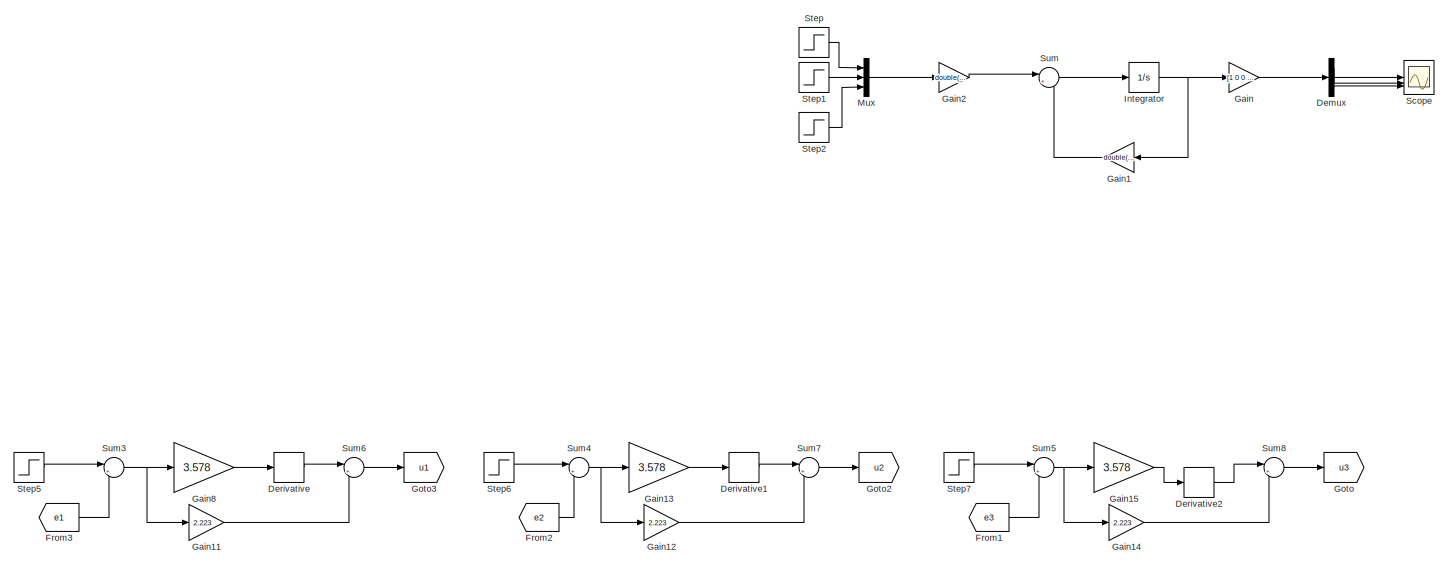
[diagram: root canvas - part 1/3, top left region]
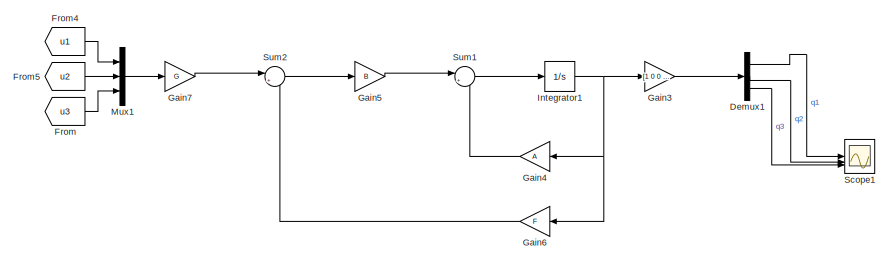
[diagram: root canvas - part 2/3, middle right region]
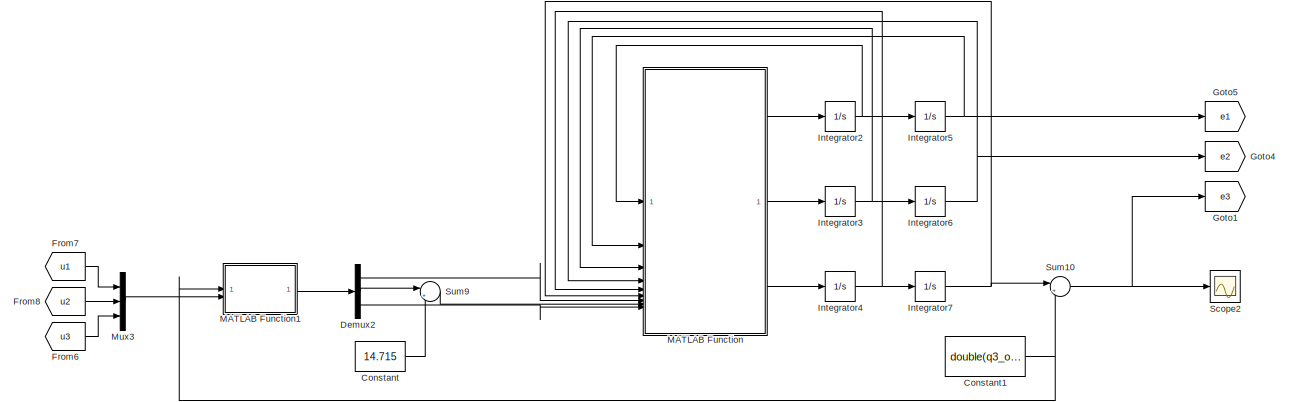
[diagram: root canvas - part 3/3, bottom left region]
MODEL slx_046e9015b2a4
KIND model
CONFIG AbsTol = auto
CONFIG EnableMultiTasking = off
CONFIG FixedStep = auto
CONFIG MaxStep = auto
CONFIG MinStep = auto
CONFIG RelTol = 1e-3
CONFIG SampleTimeConstraint = Unconstrained
CONFIG SolverName = VariableStepAuto
CONFIG StartTime = 0.0
CONFIG StopTime = 10
BLOCK [Constant] Constant
  Value = 14.715
BLOCK [Constant] Constant1
  Value = double(q3_op)
BLOCK [Demux] Demux
  Commented = on
  Outputs = 3
BLOCK [Demux] Demux1
  Commented = on
  Outputs = 3
BLOCK [Demux] Demux2
  Outputs = 3
BLOCK [Derivative] Derivative
BLOCK [Derivative] Derivative1
BLOCK [Derivative] Derivative2
BLOCK [From] From
  Commented = on
  GotoTag = u3
BLOCK [From] From1
  GotoTag = e3
BLOCK [From] From2
  GotoTag = e2
BLOCK [From] From3
  GotoTag = e1
BLOCK [From] From4
  Commented = on
  GotoTag = u1
BLOCK [From] From5
  Commented = on
  GotoTag = u2
BLOCK [From] From6
  GotoTag = u3
BLOCK [From] From7
  GotoTag = u1
BLOCK [From] From8
  GotoTag = u2
BLOCK [Gain] Gain
  Commented = on
  Gain = [1 0 0 0 0 0; 0 0 1 0 0 0;0 0 0 0 1 0]
  Multiplication = Matrix(K*u)
BLOCK [Gain] Gain1
  Commented = on
  Gain = double(A_num)
  Multiplication = Matrix(K*u)
  NameLocation = top
BLOCK [Gain] Gain11
  Gain = 2.223
BLOCK [Gain] Gain12
  Gain = 2.223
BLOCK [Gain] Gain13
  Gain = 3.578
BLOCK [Gain] Gain14
  Gain = 2.223
BLOCK [Gain] Gain15
  Gain = 3.578
BLOCK [Gain] Gain2
  Commented = on
  Gain = double(B_num)
  Multiplication = Matrix(K*u)
BLOCK [Gain] Gain3
  Commented = on
  Gain = [1 0 0 0 0 0; 0 0 1 0 0 0;0 0 0 0 1 0]
  Multiplication = Matrix(K*u)
BLOCK [Gain] Gain4
  Commented = on
  Gain = A
  Multiplication = Matrix(K*u)
  NameLocation = top
BLOCK [Gain] Gain5
  Commented = on
  Gain = B
  Multiplication = Matrix(K*u)
BLOCK [Gain] Gain6
  Commented = on
  Gain = F
  Multiplication = Matrix(K*u)
  NameLocation = top
BLOCK [Gain] Gain7
  Commented = on
  Gain = G
  Multiplication = Matrix(K*u)
BLOCK [Gain] Gain8
  Gain = 3.578
BLOCK [Goto] Goto
  GotoTag = u3
BLOCK [Goto] Goto1
  GotoTag = e3
BLOCK [Goto] Goto2
  GotoTag = u2
BLOCK [Goto] Goto3
  GotoTag = u1
BLOCK [Goto] Goto4
  GotoTag = e2
BLOCK [Goto] Goto5
  GotoTag = e1
BLOCK [Integrator] Integrator
  Commented = on
BLOCK [Integrator] Integrator1
  Commented = on
BLOCK [Integrator] Integrator2
BLOCK [Integrator] Integrator3
BLOCK [Integrator] Integrator4
BLOCK [Integrator] Integrator5
BLOCK [Integrator] Integrator6
BLOCK [Integrator] Integrator7
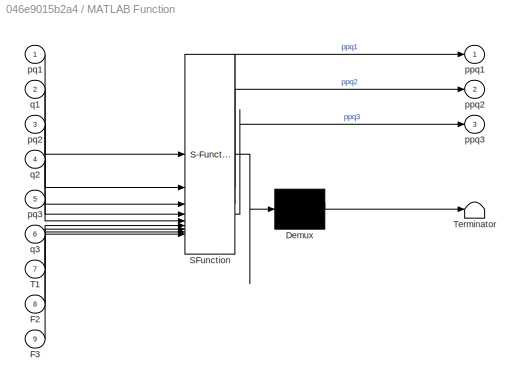
BLOCK [SubSystem] MATLAB Function
  ErrorFcn = Stateflow.Translate.translate
  PermitHierarchicalResolution = ExplicitOnly
  SFBlockType = MATLAB Function
  TreatAsAtomicUnit = on
BLOCK [Demux] MATLAB Function/ Demux 
  Outputs = 1
BLOCK [S-Function] MATLAB Function/ SFunction 
  EnableBusSupport = on
  FunctionName = sf_sfun
  PortCounts = [9 4]
  SFcnIsStateOwnerBlock = off
  SFunctionDeploymentMode = off
  Tag = Stateflow S-Function 2
BLOCK [Terminator] MATLAB Function/ Terminator 
BLOCK [Inport] MATLAB Function/F2
  Port = 8
BLOCK [Inport] MATLAB Function/F3
  Port = 9
BLOCK [Inport] MATLAB Function/T1
  Port = 7
BLOCK [Outport] MATLAB Function/ppq1
BLOCK [Outport] MATLAB Function/ppq2
  Port = 2
BLOCK [Outport] MATLAB Function/ppq3
  Port = 3
BLOCK [Inport] MATLAB Function/pq1
BLOCK [Inport] MATLAB Function/pq2
  Port = 3
BLOCK [Inport] MATLAB Function/pq3
  Port = 5
BLOCK [Inport] MATLAB Function/q1
  Port = 2
BLOCK [Inport] MATLAB Function/q2
  Port = 4
BLOCK [Inport] MATLAB Function/q3
  Port = 6
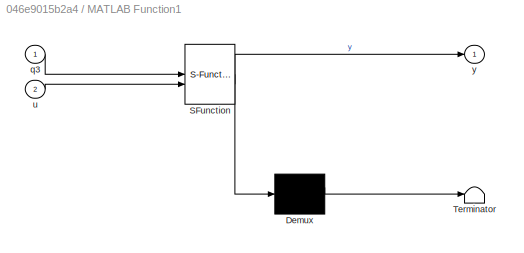
BLOCK [SubSystem] MATLAB Function1
  ErrorFcn = Stateflow.Translate.translate
  PermitHierarchicalResolution = ExplicitOnly
  SFBlockType = MATLAB Function
  TreatAsAtomicUnit = on
BLOCK [Demux] MATLAB Function1/ Demux 
  Outputs = 1
BLOCK [S-Function] MATLAB Function1/ SFunction 
  EnableBusSupport = on
  FunctionName = sf_sfun
  PortCounts = [2 2]
  SFcnIsStateOwnerBlock = off
  SFunctionDeploymentMode = off
  Tag = Stateflow S-Function 1
BLOCK [Terminator] MATLAB Function1/ Terminator 
BLOCK [Inport] MATLAB Function1/q3
BLOCK [Inport] MATLAB Function1/u
  Port = 2
BLOCK [Outport] MATLAB Function1/y
BLOCK [Mux] Mux
  Commented = on
  DisplayOption = bar
  Inputs = 3
BLOCK [Mux] Mux1
  Commented = on
  DisplayOption = bar
  Inputs = 3
BLOCK [Mux] Mux3
  DisplayOption = bar
  Inputs = 3
BLOCK [Scope] Scope
  Commented = on
  Floating = off
  NumInputPorts = 3
  ScopeSpecificationString = Simulink.scopes.TimeScopeBlockCfg('CurrentConfiguration', extmgr.ConfigurationSet(extmgr.Configuration('Core','General UI',true),extmgr.Configuration('Core','Source UI',true),extmgr.Configuration('Sources','WiredSimulink',true),extmgr.Configuration('Visuals','Time Domain',true,'SerializedDisplays',{struct('MinYLimReal','-121167.6499','MaxYLimReal','24353.07221','YLabelReal','','MinYLimMag','    0....<+1437ch>
BLOCK [Scope] Scope1
  Commented = on
  Floating = off
  NumInputPorts = 3
  ScopeSpecificationString = Simulink.scopes.TimeScopeBlockCfg('CurrentConfiguration', extmgr.ConfigurationSet(extmgr.Configuration('Core','General UI',true),extmgr.Configuration('Core','Source UI',true),extmgr.Configuration('Sources','WiredSimulink',true,'DataLoggingVariableName','ScopeData1'),extmgr.Configuration('Visuals','Time Domain',true,'SerializedDisplays',{struct('MinYLimReal','-0.12491','MaxYLimReal','1.12416','YLab...<+1495ch>
BLOCK [Scope] Scope2
  Floating = off
  NumInputPorts = 1
  ScopeSpecificationString = Simulink.scopes.TimeScopeBlockCfg('CurrentConfiguration', extmgr.ConfigurationSet(extmgr.Configuration('Core','General UI',true),extmgr.Configuration('Core','Source UI',true),extmgr.Configuration('Sources','WiredSimulink',true,'DataLoggingVariableName','ScopeData2'),extmgr.Configuration('Visuals','Time Domain',true,'SerializedDisplays',{struct('MinYLimReal','-1.8919','MaxYLimReal','1.31918','YLabe...<+1360ch>
BLOCK [Step] Step
  Commented = on
  SampleTime = 0
BLOCK [Step] Step1
  Commented = on
  SampleTime = 0
BLOCK [Step] Step2
  Commented = on
  SampleTime = 0
BLOCK [Step] Step5
  After = 0
  SampleTime = 0
  Time = 0
BLOCK [Step] Step6
  After = 0
  SampleTime = 0
  Time = 0
BLOCK [Step] Step7
  SampleTime = 0
  Time = 0
BLOCK [Sum] Sum
  Commented = on
  Inputs = |++
BLOCK [Sum] Sum1
  Commented = on
  Inputs = |++
BLOCK [Sum] Sum10
  Inputs = |+-
BLOCK [Sum] Sum2
  Commented = on
  Inputs = |+-
BLOCK [Sum] Sum3
  Inputs = |+-
BLOCK [Sum] Sum4
  Inputs = |+-
BLOCK [Sum] Sum5
  Inputs = |+-
BLOCK [Sum] Sum6
  Inputs = |++
BLOCK [Sum] Sum7
  Inputs = |++
BLOCK [Sum] Sum8
  Inputs = |++
BLOCK [Sum] Sum9
  Inputs = |++
NET Constant1:1 -> MATLAB Function1:1, Sum10:2
LINE Constant:1 -> Sum9:2
LINE Demux1:1 -> Scope1:1
LINE Demux1:2 -> Scope1:2
LINE Demux1:3 -> Scope1:3
LINE Demux2:1 -> MATLAB Function:7
LINE Demux2:2 -> Sum9:1
LINE Demux2:3 -> MATLAB Function:9
LINE Demux:1 -> Scope:1
LINE Demux:2 -> Scope:2
LINE Demux:3 -> Scope:3
LINE Derivative1:1 -> Sum7:1
LINE Derivative2:1 -> Sum8:1
LINE Derivative:1 -> Sum6:1
LINE From1:1 -> Sum5:2
LINE From2:1 -> Sum4:2
LINE From3:1 -> Sum3:2
LINE From4:1 -> Mux1:1
LINE From5:1 -> Mux1:2
LINE From6:1 -> Mux3:3
LINE From7:1 -> Mux3:1
LINE From8:1 -> Mux3:2
LINE From:1 -> Mux1:3
LINE Gain11:1 -> Sum6:2
LINE Gain12:1 -> Sum7:2
LINE Gain13:1 -> Derivative1:1
LINE Gain14:1 -> Sum8:2
LINE Gain15:1 -> Derivative2:1
LINE Gain1:1 -> Sum:2
LINE Gain2:1 -> Sum:1
LINE Gain3:1 -> Demux1:1
LINE Gain4:1 -> Sum1:2
LINE Gain5:1 -> Sum1:1
LINE Gain6:1 -> Sum2:2
LINE Gain7:1 -> Sum2:1
LINE Gain8:1 -> Derivative:1
LINE Gain:1 -> Demux:1
NET Integrator1:1 -> Gain3:1, Gain4:1, Gain6:1
NET Integrator2:1 -> Integrator5:1, MATLAB Function:1
NET Integrator3:1 -> Integrator6:1, MATLAB Function:3
NET Integrator4:1 -> Integrator7:1, MATLAB Function:5
NET Integrator5:1 -> Goto5:1, MATLAB Function:2
NET Integrator6:1 -> Goto4:1, MATLAB Function:4
NET Integrator7:1 -> MATLAB Function:6, Sum10:1
NET Integrator:1 -> Gain1:1, Gain:1
LINE MATLAB Function1:1 -> Demux2:1
LINE MATLAB Function:1 -> Integrator2:1
LINE MATLAB Function:2 -> Integrator3:1
LINE MATLAB Function:3 -> Integrator4:1
LINE Mux1:1 -> Gain7:1
LINE Mux3:1 -> MATLAB Function1:2
LINE Mux:1 -> Gain2:1
LINE Step1:1 -> Mux:2
LINE Step2:1 -> Mux:3
LINE Step5:1 -> Sum3:1
LINE Step6:1 -> Sum4:1
LINE Step7:1 -> Sum5:1
LINE Step:1 -> Mux:1
NET Sum10:1 -> Goto1:1, Scope2:1
LINE Sum1:1 -> Integrator1:1
LINE Sum2:1 -> Gain5:1
NET Sum3:1 -> Gain11:1, Gain8:1
NET Sum4:1 -> Gain12:1, Gain13:1
NET Sum5:1 -> Gain14:1, Gain15:1
LINE Sum6:1 -> Goto3:1
LINE Sum7:1 -> Goto2:1
LINE Sum8:1 -> Goto:1
LINE Sum9:1 -> MATLAB Function:8
LINE Sum:1 -> Integrator:1
note: NET lines group one-source signal fan-out (src -> all destinations, sorted); 1:1 wires keep LINE
CHART MATLAB Function1 states=1 transitions=1
  STATE_LABEL 'eML_blk_kernel()'
  STATE_LABEL 'SCRIPT:\nfunction y = fcn(q3, u)\nG = [q3^2/2 + q3/5 + 3/50,   0,   0; 0, 3/2,   0; 0,   0, 1/2];\ny = G*u;\n'
CHART MATLAB Function states=1 transitions=1
  STATE_LABEL 'eML_blk_kernel()'
  STATE_LABEL 'SCRIPT:\nfunction [ppq1, ppq2, ppq3] = fcn(pq1, q1, pq2, q2, pq3, q3, T1, F2, F3)\n\nppq1 = (T1-pq1*q3*pq3-pq1*pq3/5)/((q3^2)/2 +q3/5 +3/50);\n\nppq2 = 2*F2/3 -9.81;\n\nppq3 = 2*F3 +(pq1^2)*q3 +(pq1^2)/5;\n\n'
CHART  states=0 transitions=0
CHART  states=0 transitions=0
